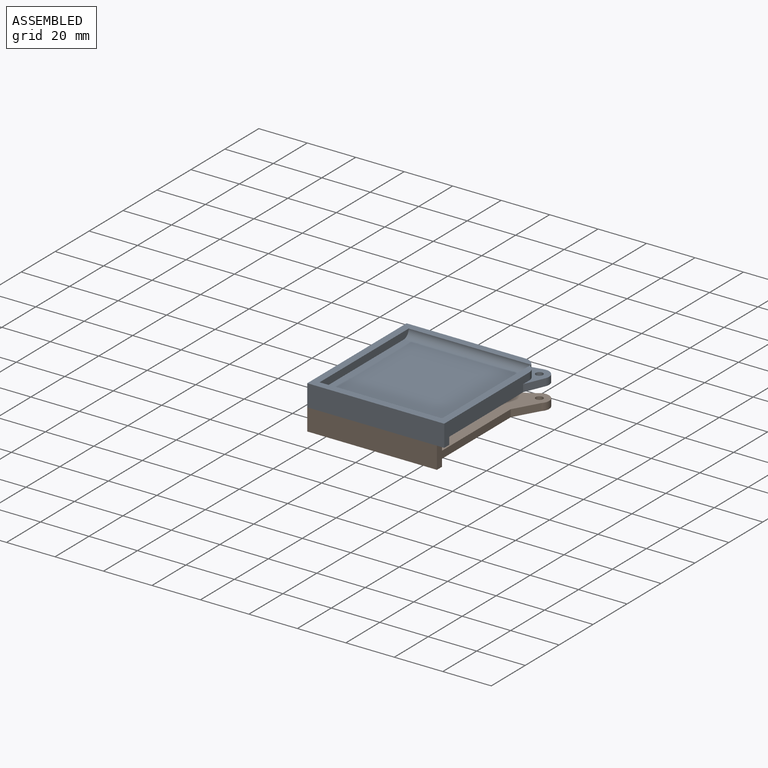
[diagram: assembled view]
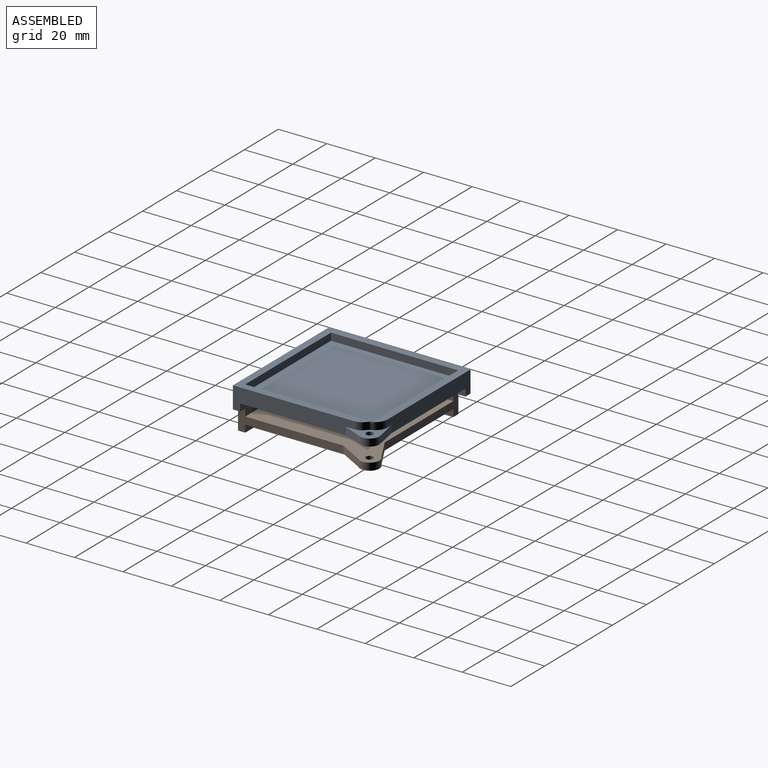
[diagram: assembled view, second angle]
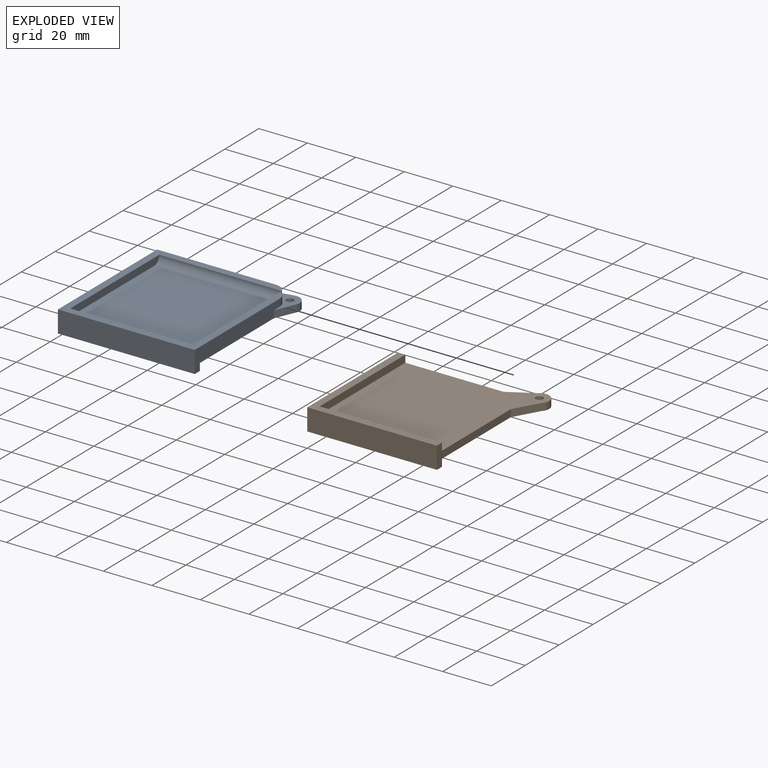
[diagram: exploded view]
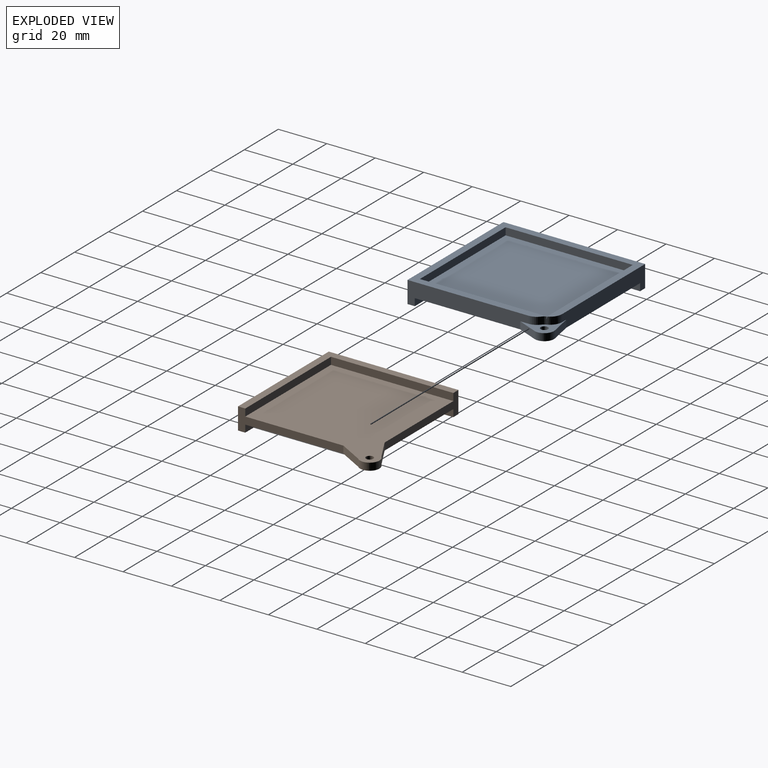
[diagram: exploded view, second angle]
ASSEMBLY  parts=2 mates=3
PART A: 22 faces, bbox 60.3x60.3x9 mm
  f0: plane 57.33x57.33mm, normal (0,0,-1), area 3004mm2, adj f1,f2,f11,f12,f14,f15,f16,f17
  f1: plane 48.85x9mm, normal (0,1,0), area 295mm2, adj f0,f5,f9,f12,f13,f15,f18,f21
  f2: plane 49.95x9mm, normal (1,0,0), area 298.4mm2, adj f0,f6,f9,f11,f13,f17,f18,f20
  f3: plane 52.33x3mm, normal (-1,0,0), area 155.5mm2, adj f4,f8,f9,f10,f21
  f4: cylinder r=3mm len=50.5mm, axis (1,0,0), area 237.9mm2, adj f3,f7,f9,f10,f21
  f5: plane 58.5x9mm, normal (-1,0,0), area 526.5mm2, adj f1,f6,f9,f13
  f6: plane 56.5x9mm, normal (0,-1,0), area 508.5mm2, adj f2,f5,f9,f13
  f7: plane 52.5x3mm, normal (1,0,0), area 155.6mm2, adj f4,f8,f9,f10
  f8: plane 50.5x3mm, normal (0,1,0), area 151.5mm2, adj f3,f7,f9,f10
  f9: plane 58.5x56.5mm, normal (0,0,1), area 634.4mm2, adj f1,f2,f3,f4,f5,f6,f7,f8
  f10: plane 50.5x49.5mm, normal (0,0,1), area 2499.7mm2, adj f3,f4,f7,f8
  f11: plane 53.5x3mm, normal (0,1,0), area 160.5mm2, adj f0,f2,f12,f13
  f12: plane 55.5x3mm, normal (1,0,0), area 166.5mm2, adj f0,f1,f11,f13
  f13: plane 58.5x56.5mm, normal (0,0,-1), area 336mm2, adj f1,f2,f5,f6,f11,f12
  f14: cylinder r=4mm len=5.32mm, axis (0,0,-1), area 24.7mm2, adj f0,f15,f17,f18
  f15: plane 9.22x3mm, normal (-0.19,0.98,0), area 28.2mm2, adj f0,f1,f14,f18
  f16: cylinder r=1.5mm len=3mm, axis (0,0,-1), area 28.3mm2, adj f0,f18
  f17: plane 8.51x3.61mm, normal (0.92,-0.39,0), area 27.7mm2, adj f0,f2,f14,f18
  f18: plane 13.83x13.83mm, normal (0,0,1), area 54.3mm2, adj f1,f2,f14,f15,f16,f17,f19,f20
  f19: cylinder r=3mm len=3mm, axis (0,0,-1), area 5mm2, adj f9,f18,f20,f21
  f20: cylinder r=5mm len=3.99mm, axis (0,0,-1), area 13.8mm2, adj f2,f9,f18,f19
  f21: cylinder r=5mm len=4.68mm, axis (0,0,-1), area 18mm2, adj f1,f3,f4,f9,f18,f19
PART B: 16 faces, bbox 60.3x60.3x9 mm
  f0: plane 43.5x9mm, normal (0,1,0), area 148.5mm2, adj f2,f3,f5,f6,f8,f10,f11,f13
  f1: plane 43.5x9mm, normal (1,0,0), area 148.5mm2, adj f2,f4,f5,f7,f8,f9,f11,f15
  f2: plane 57.33x57.33mm, normal (0,0,1), area 2640.9mm2, adj f0,f1,f6,f7,f12,f13,f14,f15
  f3: plane 53.5x9mm, normal (-1,0,0), area 481.5mm2, adj f0,f4,f8,f11
  f4: plane 53.5x9mm, normal (0,-1,0), area 481.5mm2, adj f1,f3,f8,f11
  f5: plane 57.33x57.33mm, normal (0,0,-1), area 2640.9mm2, adj f0,f1,f9,f10,f12,f13,f14,f15
  f6: plane 50.5x3mm, normal (1,0,0), area 151.5mm2, adj f0,f2,f7,f8
  f7: plane 50.5x3mm, normal (0,1,0), area 151.5mm2, adj f1,f2,f6,f8
  f8: plane 53.5x53.5mm, normal (0,0,1), area 312mm2, adj f0,f1,f3,f4,f6,f7
  f9: plane 50.5x3mm, normal (0,1,0), area 151.5mm2, adj f1,f5,f10,f11
  f10: plane 50.5x3mm, normal (1,0,0), area 151.5mm2, adj f0,f5,f9,f11
  f11: plane 53.5x53.5mm, normal (0,0,-1), area 312mm2, adj f0,f1,f3,f4,f9,f10
  f12: cylinder r=4mm len=6.83mm, axis (0,0,-1), area 37.7mm2, adj f2,f5,f13,f15
  f13: plane 10x5.66mm, normal (-0.49,0.87,0), area 34.5mm2, adj f0,f2,f5,f12
  f14: cylinder r=1.5mm len=3mm, axis (0,0,-1), area 28.3mm2, adj f2,f5
  f15: plane 10x5.66mm, normal (0.87,-0.49,0), area 34.5mm2, adj f1,f2,f5,f12
PLACE A t=(13.04,-23.65,14.99)mm
PLACE B t=(13.04,-23.65,5.99)mm
MATE planar B.f3 <-> A.f5  axis (-1,0,0) through (-26.02,-4.57,7.49)mm
MATE planar A.f6 <-> B.f4  axis (0,-1,0) through (2.23,-31.32,16.49)mm
MATE planar B.f8 <-> A.f13  axis (0,0,1) through (-11.53,-16.83,11.99)mm
